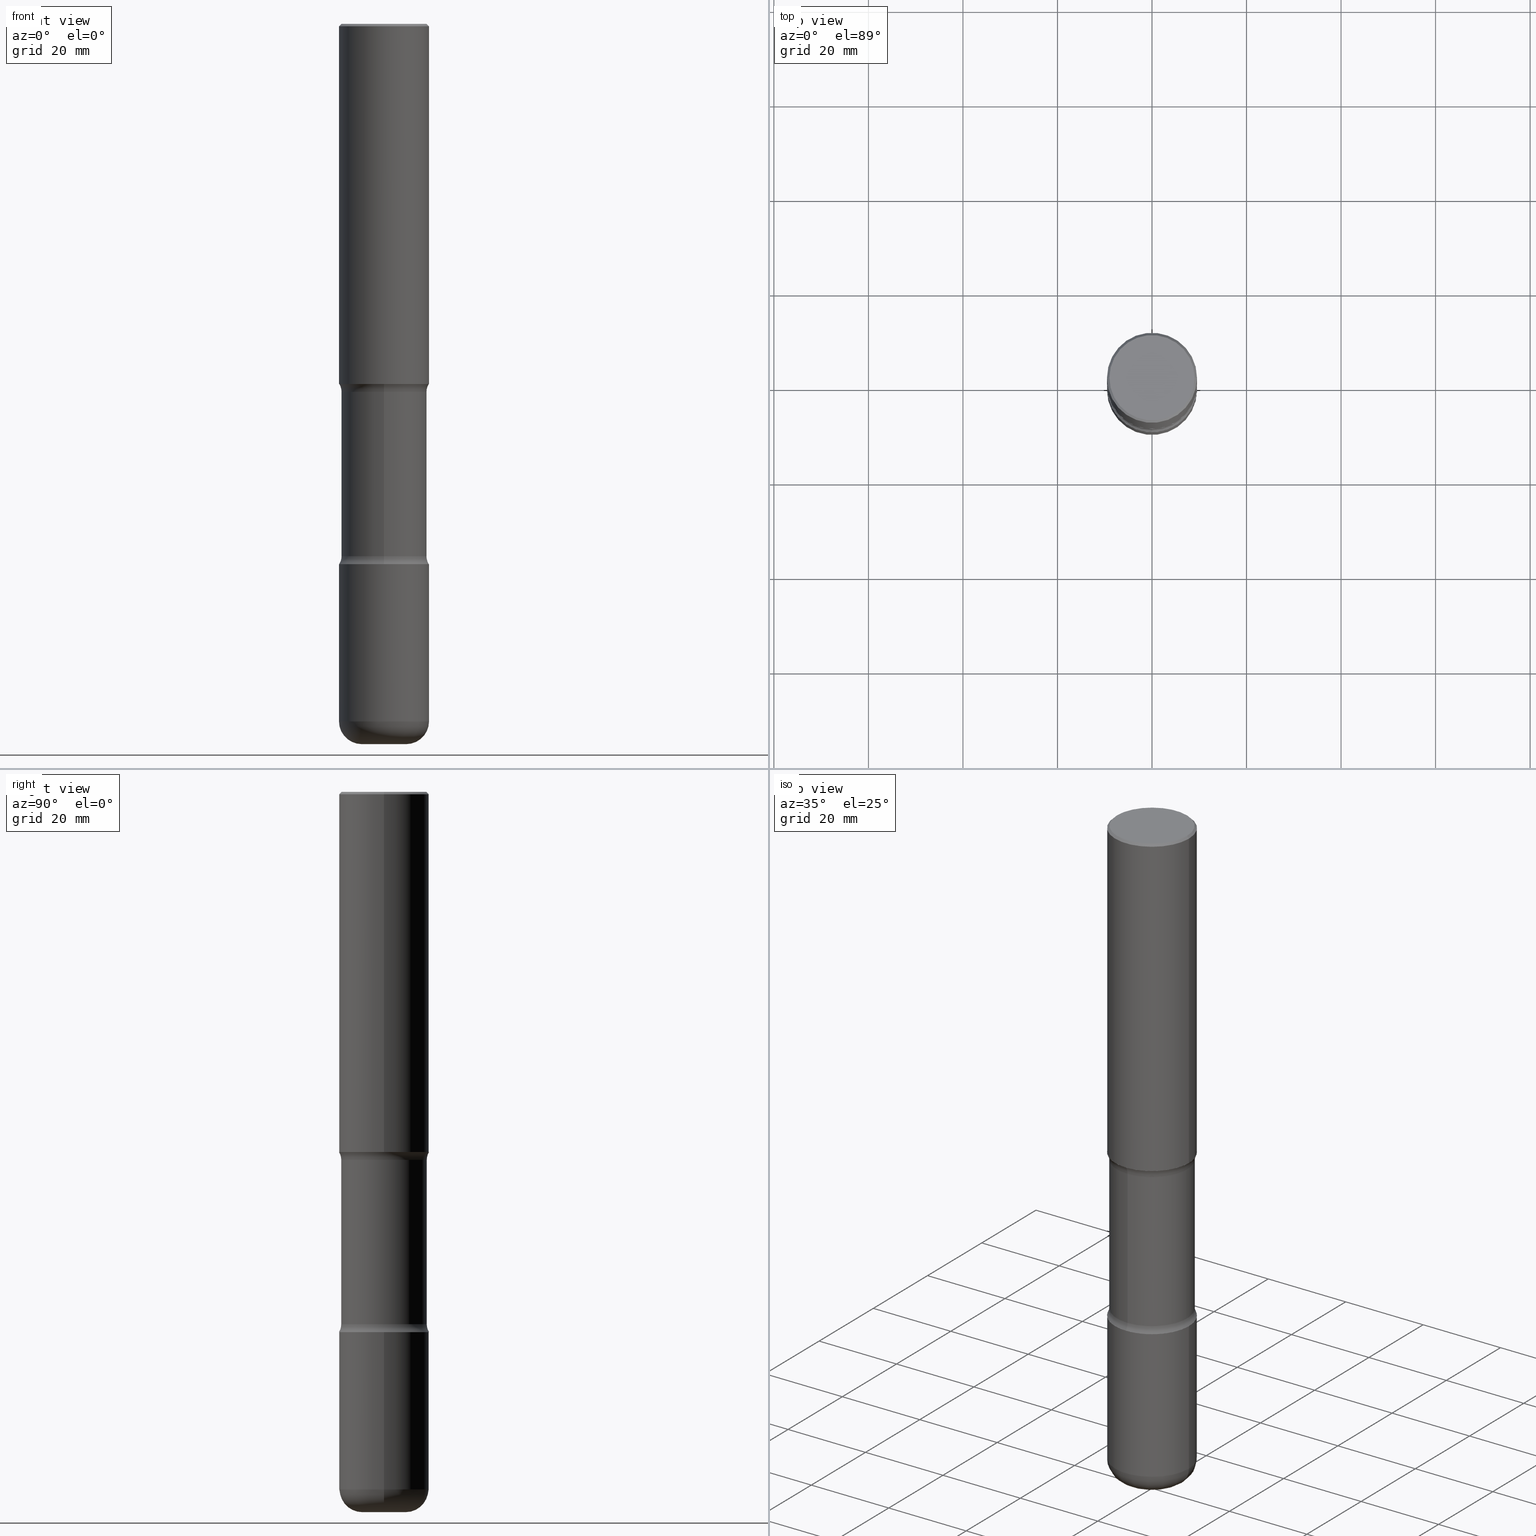
[diagram: canonical four-view strip — front | top / right | iso, engineering-drawing reading convention]
A machine part, canonical four-view strip (front | top / right | iso — engineering-drawing reading convention). The complete STEP part file that produces these views, byte-faithful:
ISO-10303-21;
HEADER;
FILE_DESCRIPTION (( 'STEP AP203' ),
    '1' );
FILE_NAME ('37946.STEP',
    '2024-03-02T01:41:43',
    ( '' ),
    ( '' ),
    'SwSTEP 2.0',
    'SolidWorks 2023',
    '' );
FILE_SCHEMA (( 'CONFIG_CONTROL_DESIGN' ));
ENDSEC;

DATA;
#1 = VERTEX_POINT ( 'NONE', #104 ) ;
#2 = AXIS2_PLACEMENT_3D ( 'NONE', #121, #418, #281 ) ;
#3 = VERTEX_POINT ( 'NONE', #198 ) ;
#4 = FACE_OUTER_BOUND ( 'NONE', #90, .T. ) ;
#5 = ORIENTED_EDGE ( 'NONE', *, *, #288, .F. ) ;
#6 = VERTEX_POINT ( 'NONE', #533 ) ;
#7 = MANIFOLD_SOLID_BREP ( 'Body-Move/Copy2[1]', #356 ) ;
#8 = AXIS2_PLACEMENT_3D ( 'NONE', #25, #413, #376 ) ;
#9 = CIRCLE ( 'NONE', #31, 0.3750000000000003886 ) ;
#10 = ADVANCED_FACE ( 'NONE', ( #367 ), #153, .F. ) ;
#11 = ORIENTED_EDGE ( 'NONE', *, *, #230, .T. ) ;
#12 = ORIENTED_EDGE ( 'NONE', *, *, #73, .F. ) ;
#13 = CARTESIAN_POINT ( 'NONE',  ( -3.301614661427441806E-15, -0.4812500000000156097, -4.434152164044668609 ) ) ;
#14 = CARTESIAN_POINT ( 'NONE',  ( 2.487680453925806274E-15, 0.3562499999999891309, -3.065847835955330503 ) ) ;
#15 = CIRCLE ( 'NONE', #345, 0.3750000000000003886 ) ;
#16 = CONICAL_SURFACE ( 'NONE', #346, 0.3750000000000001110, 0.7853981633974479459 ) ;
#17 = DIRECTION ( 'NONE',  ( 2.508247471065963170E-29, -3.401578717594097873E-15, -1.000000000000000000 ) ) ;
#18 = CARTESIAN_POINT ( 'NONE',  ( 0.3750000000000003886, -1.833027702892650691E-14, -4.499999999999999112 ) ) ;
#19 = LOCAL_TIME ( 20, 41, 43.00000000000000000, #429 ) ;
#20 = PERSON_AND_ORGANIZATION ( #221, #40 ) ;
#21 = CARTESIAN_POINT ( 'NONE',  ( 0.000000000000000000, 0.000000000000000000, 0.000000000000000000 ) ) ;
#22 = DIRECTION ( 'NONE',  ( 1.000000000000000000, -6.982962677686263555E-15, 0.000000000000000000 ) ) ;
#23 = APPROVAL ( #26, 'UNSPECIFIED' ) ;
#24 = FACE_OUTER_BOUND ( 'NONE', #192, .T. ) ;
#25 = CARTESIAN_POINT ( 'NONE',  ( 1.100460962783311244E-28, -1.571166602479415374E-14, -4.499999999999999112 ) ) ;
#26 = APPROVAL_STATUS ( 'not_yet_approved' ) ;
#27 = CARTESIAN_POINT ( 'NONE',  ( 1.420817376393564022E-28, -2.028550657867867295E-14, -5.809999999999998721 ) ) ;
#28 = CARTESIAN_POINT ( 'NONE',  ( 3.360550788636623928E-15, 0.4812499999999845790, -4.434152164044672162 ) ) ;
#29 = CALENDAR_DATE ( 2024, 1, 3 ) ;
#30 = EDGE_CURVE ( 'NONE', #344, #558, #15, .T. ) ;
#31 = AXIS2_PLACEMENT_3D ( 'NONE', #62, #423, #441 ) ;
#32 = CARTESIAN_POINT ( 'NONE',  ( 7.242238421234168109E-29, -1.060929794840300496E-14, -2.999999999999999112 ) ) ;
#33 = ORIENTED_EDGE ( 'NONE', *, *, #264, .T. ) ;
#34 = DIRECTION ( 'NONE',  ( 6.982962677686266711E-15, 1.000000000000000000, -2.913971193241876822E-15 ) ) ;
#35 = CALENDAR_DATE ( 2024, 1, 3 ) ;
#36 = EDGE_LOOP ( 'NONE', ( #427, #392, #254, #527 ) ) ;
#37 = CARTESIAN_POINT ( 'NONE',  ( 1.420817376393564022E-28, -2.028550657867867295E-14, -5.809999999999998721 ) ) ;
#38 = EDGE_LOOP ( 'NONE', ( #271, #432, #103, #259 ) ) ;
#39 = CIRCLE ( 'NONE', #91, 0.1249999999999999584 ) ;
#40 = ORGANIZATION ( 'UNSPECIFIED', 'UNSPECIFIED', '' ) ;
#41 = ADVANCED_FACE ( 'NONE', ( #405 ), #99, .F. ) ;
#42 = EDGE_CURVE ( 'NONE', #225, #188, #156, .T. ) ;
#43 = DIRECTION ( 'NONE',  ( 2.438088387897960049E-29, -3.491481338843145188E-15, -1.000000000000000000 ) ) ;
#44 = CARTESIAN_POINT ( 'NONE',  ( 7.402053284434616373E-29, -1.084094290665388719E-14, -3.065847835955329614 ) ) ;
#45 = ORIENTED_EDGE ( 'NONE', *, *, #315, .F. ) ;
#46 = EDGE_CURVE ( 'NONE', #558, #384, #544, .T. ) ;
#47 = CARTESIAN_POINT ( 'NONE',  ( -3.301614661427474544E-15, -0.4812500000000108358, -3.065847835955327838 ) ) ;
#48 = EDGE_LOOP ( 'NONE', ( #45, #358, #364, #186 ) ) ;
#49 = DIRECTION ( 'NONE',  ( -2.445468806185136597E-29, 3.491481338843145583E-15, 1.000000000000000000 ) ) ;
#50 = DIRECTION ( 'NONE',  ( 1.000000000000000000, -6.982962677686265922E-15, 0.000000000000000000 ) ) ;
#51 = EDGE_CURVE ( 'NONE', #216, #176, #459, .T. ) ;
#52 = PERSON_AND_ORGANIZATION ( #221, #40 ) ;
#53 = CIRCLE ( 'NONE', #120, 0.3750000000000004996 ) ;
#54 = UNCERTAINTY_MEASURE_WITH_UNIT (LENGTH_MEASURE( 1.000000000000000082E-05 ), #559, 'distance_accuracy_value', 'NONE');
#55 = ORIENTED_EDGE ( 'NONE', *, *, #46, .F. ) ;
#56 = EDGE_LOOP ( 'NONE', ( #107, #514, #94, #266 ) ) ;
#57 = CARTESIAN_POINT ( 'NONE',  ( 0.3750000000000003886, -1.309305502066178637E-14, -2.999999999999999112 ) ) ;
#58 = EDGE_LOOP ( 'NONE', ( #61, #349, #149, #430 ) ) ;
#59 = AXIS2_PLACEMENT_3D ( 'NONE', #207, #502, #292 ) ;
#60 = CIRCLE ( 'NONE', #241, 0.3550000000000000377 ) ;
#61 = ORIENTED_EDGE ( 'NONE', *, *, #472, .F. ) ;
#62 = CARTESIAN_POINT ( 'NONE',  ( 1.100460962783311244E-28, -1.571166602479415374E-14, -4.499999999999999112 ) ) ;
#63 = FACE_OUTER_BOUND ( 'NONE', #473, .T. ) ;
#64 = DIRECTION ( 'NONE',  ( -6.982962677686266711E-15, -1.000000000000000000, 3.491481338843145583E-15 ) ) ;
#65 = DIRECTION ( 'NONE',  ( 6.982962677686265133E-15, 1.000000000000000000, -3.067338098149347905E-15 ) ) ;
#66 = COORDINATED_UNIVERSAL_TIME_OFFSET ( 5, 0, .BEHIND. ) ;
#67 = DIMENSIONAL_EXPONENTS ( 1.000000000000000000, 0.000000000000000000, 0.000000000000000000, 0.000000000000000000, 0.000000000000000000, 0.000000000000000000, 0.000000000000000000 ) ;
#68 = VECTOR ( 'NONE', #343, 39.37007874015748143 ) ;
#69 = DIRECTION ( 'NONE',  ( -2.445468806185136597E-29, 3.491481338843145583E-15, 1.000000000000000000 ) ) ;
#70 = AXIS2_PLACEMENT_3D ( 'NONE', #161, #419, #330 ) ;
#71 = CARTESIAN_POINT ( 'NONE',  ( 1.084358079904955852E-28, -1.548175953435291656E-14, -4.434152164044670386 ) ) ;
#72 = SECURITY_CLASSIFICATION_LEVEL ( 'unclassified' ) ;
#73 = EDGE_CURVE ( 'NONE', #361, #440, #331, .T. ) ;
#74 = EDGE_CURVE ( 'NONE', #322, #176, #245, .T. ) ;
#75 = CYLINDRICAL_SURFACE ( 'NONE', #380, 0.3750000000000004441 ) ;
#76 = CARTESIAN_POINT ( 'NONE',  ( 1.100460962783311244E-28, -1.571166602479415374E-14, -4.499999999999999112 ) ) ;
#77 = FACE_OUTER_BOUND ( 'NONE', #38, .T. ) ;
#78 = APPLICATION_PROTOCOL_DEFINITION ( 'international standard', 'config_control_design', 1994, #106 ) ;
#79 = ORIENTED_EDGE ( 'NONE', *, *, #234, .F. ) ;
#80 = CIRCLE ( 'NONE', #434, 0.1899999999999999467 ) ;
#81 = CIRCLE ( 'NONE', #373, 0.3750000000000001110 ) ;
#82 = CARTESIAN_POINT ( 'NONE',  ( 1.467281283711081510E-28, -2.094888803305886640E-14, -5.999999999999998224 ) ) ;
#83 = CARTESIAN_POINT ( 'NONE',  ( 7.407401089244291879E-29, -1.083328454578828421E-14, -3.065847835955329614 ) ) ;
#84 = VERTEX_POINT ( 'NONE', #236 ) ;
#85 = DIRECTION ( 'NONE',  ( 1.000000000000000000, -6.982962677686263555E-15, 4.883557194083111780E-29 ) ) ;
#86 = ORIENTED_EDGE ( 'NONE', *, *, #327, .F. ) ;
#87 = ADVANCED_FACE ( 'NONE', ( #286 ), #340, .T. ) ;
#88 = DIRECTION ( 'NONE',  ( 2.508247471065963170E-29, -3.401578717594097873E-15, -1.000000000000000000 ) ) ;
#89 = CC_DESIGN_DATE_AND_TIME_ASSIGNMENT ( #509, #128, ( #539 ) ) ;
#90 = EDGE_LOOP ( 'NONE', ( #519, #492 ) ) ;
#91 = AXIS2_PLACEMENT_3D ( 'NONE', #47, #223, #305 ) ;
#92 = TOROIDAL_SURFACE ( 'NONE', #211, 0.4812499999999999556, 0.1249999999999999584 ) ;
#93 = CARTESIAN_POINT ( 'NONE',  ( 2.478951750578624998E-15, 0.3550000000000000377, -1.237341619044266624E-15 ) ) ;
#94 = ORIENTED_EDGE ( 'NONE', *, *, #297, .F. ) ;
#95 = EDGE_CURVE ( 'NONE', #150, #225, #80, .T. ) ;
#96 = DIRECTION ( 'NONE',  ( 6.982962677686265922E-15, 1.000000000000000000, -3.401578717594097873E-15 ) ) ;
#97 = APPLICATION_PROTOCOL_DEFINITION ( 'international standard', 'config_control_design', 1994, #119 ) ;
#98 = EDGE_LOOP ( 'NONE', ( #55, #228, #33, #86 ) ) ;
#99 = TOROIDAL_SURFACE ( 'NONE', #110, 0.4812500000000000666, 0.1249999999999998612 ) ;
#100 = AXIS2_PLACEMENT_3D ( 'NONE', #335, #537, #168 ) ;
#101 = CC_DESIGN_SECURITY_CLASSIFICATION ( #539, ( #134 ) ) ;
#102 = EDGE_CURVE ( 'NONE', #1, #147, #374, .T. ) ;
#103 = ORIENTED_EDGE ( 'NONE', *, *, #404, .T. ) ;
#104 = CARTESIAN_POINT ( 'NONE',  ( 0.3550000000000000377, -2.538996582575041048E-15, 4.268512490117958041E-18 ) ) ;
#105 = PRODUCT_RELATED_PRODUCT_CATEGORY ( 'detail', '', ( #350 ) ) ;
#106 = APPLICATION_CONTEXT ( 'configuration controlled 3d designs of mechanical parts and assemblies' ) ;
#107 = ORIENTED_EDGE ( 'NONE', *, *, #215, .T. ) ;
#108 = CC_DESIGN_PERSON_AND_ORGANIZATION_ASSIGNMENT ( #504, #284, ( #134 ) ) ;
#109 = AXIS2_PLACEMENT_3D ( 'NONE', #450, #447, #442 ) ;
#110 = AXIS2_PLACEMENT_3D ( 'NONE', #485, #534, #96 ) ;
#111 = AXIS2_PLACEMENT_3D ( 'NONE', #76, #249, #456 ) ;
#112 = FACE_OUTER_BOUND ( 'NONE', #98, .T. ) ;
#113 = EDGE_CURVE ( 'NONE', #225, #444, #451, .T. ) ;
#114 = DIRECTION ( 'NONE',  ( -1.000000000000000000, 6.982962677686265922E-15, 0.000000000000000000 ) ) ;
#115 = DIRECTION ( 'NONE',  ( -2.445468806185136597E-29, 3.491481338843145583E-15, 1.000000000000000000 ) ) ;
#116 = PERSON_AND_ORGANIZATION ( #221, #40 ) ;
#117 = DIRECTION ( 'NONE',  ( 2.508247471065963170E-29, -3.401578717594097873E-15, -1.000000000000000000 ) ) ;
#118 = CALENDAR_DATE ( 2024, 1, 3 ) ;
#119 = APPLICATION_CONTEXT ( 'configuration controlled 3d designs of mechanical parts and assemblies' ) ;
#120 = AXIS2_PLACEMENT_3D ( 'NONE', #389, #88, #471 ) ;
#121 = CARTESIAN_POINT ( 'NONE',  ( 0.000000000000000000, 0.000000000000000000, 0.000000000000000000 ) ) ;
#122 =( GEOMETRIC_REPRESENTATION_CONTEXT ( 3 ) GLOBAL_UNCERTAINTY_ASSIGNED_CONTEXT ( ( #54 ) ) GLOBAL_UNIT_ASSIGNED_CONTEXT ( ( #559, #143, #247 ) ) REPRESENTATION_CONTEXT ( 'NONE', 'WORKASPACE' ) );
#123 = PERSON_AND_ORGANIZATION_ROLE ( 'design_owner' ) ;
#124 = ADVANCED_FACE ( 'NONE', ( #497 ), #495, .F. ) ;
#125 = DIRECTION ( 'NONE',  ( -1.000000000000000000, 7.105427357600999492E-15, 0.000000000000000000 ) ) ;
#126 = CARTESIAN_POINT ( 'NONE',  ( 4.890937612370289799E-31, -6.982962677686315028E-17, -0.02000000000000006981 ) ) ;
#127 = CARTESIAN_POINT ( 'NONE',  ( 7.336406418555407548E-29, -1.047444401652943320E-14, -2.999999999999999112 ) ) ;
#128 = DATE_TIME_ROLE ( 'classification_date' ) ;
#129 = DIRECTION ( 'NONE',  ( 6.982962677686265133E-15, 1.000000000000000000, -3.067338098149347905E-15 ) ) ;
#130 = ADVANCED_FACE ( 'NONE', ( #112 ), #540, .T. ) ;
#131 = DIRECTION ( 'NONE',  ( 6.982962677686265133E-15, 1.000000000000000000, -3.067338098149347905E-15 ) ) ;
#132 = AXIS2_PLACEMENT_3D ( 'NONE', #256, #351, #431 ) ;
#133 = ORIENTED_EDGE ( 'NONE', *, *, #74, .F. ) ;
#134 = PRODUCT_DEFINITION_FORMATION_WITH_SPECIFIED_SOURCE ( 'ANY', '', #350, .NOT_KNOWN. ) ;
#135 = DIRECTION ( 'NONE',  ( -6.982962677686265133E-15, -1.000000000000000000, 0.000000000000000000 ) ) ;
#136 = EDGE_LOOP ( 'NONE', ( #224, #262 ) ) ;
#137 = PRODUCT_DEFINITION ( 'UNKNOWN', '', #134, #400 ) ;
#138 = CARTESIAN_POINT ( 'NONE',  ( 1.476698083443205790E-28, -2.081403410118529621E-14, -5.999999999999999112 ) ) ;
#139 = ORIENTED_EDGE ( 'NONE', *, *, #264, .F. ) ;
#140 = EDGE_CURVE ( 'NONE', #6, #440, #489, .T. ) ;
#141 = CARTESIAN_POINT ( 'NONE',  ( 0.3750000000000002220, -2.618611004132351594E-15, 1.828566290923477043E-29 ) ) ;
#142 = ORIENTED_EDGE ( 'NONE', *, *, #412, .F. ) ;
#143 =( NAMED_UNIT ( * ) PLANE_ANGLE_UNIT ( ) SI_UNIT ( $, .RADIAN. ) );
#144 = CIRCLE ( 'NONE', #525, 0.3750000000000003886 ) ;
#145 = AXIS2_PLACEMENT_3D ( 'NONE', #541, #283, #414 ) ;
#146 = EDGE_CURVE ( 'NONE', #176, #440, #515, .T. ) ;
#147 = VERTEX_POINT ( 'NONE', #282 ) ;
#148 = PRODUCT_DEFINITION_SHAPE ( 'NONE', 'NONE',  #137 ) ;
#149 = ORIENTED_EDGE ( 'NONE', *, *, #412, .T. ) ;
#150 = VERTEX_POINT ( 'NONE', #463 ) ;
#151 = VECTOR ( 'NONE', #420, 39.37007874015748143 ) ;
#152 = AXIS2_PLACEMENT_3D ( 'NONE', #368, #334, #280 ) ;
#153 = PLANE ( 'NONE',  #109 ) ;
#154 = EDGE_CURVE ( 'NONE', #363, #188, #179, .T. ) ;
#155 = ADVANCED_FACE ( 'NONE', ( #237 ), #481, .T. ) ;
#156 = LINE ( 'NONE', #157, #387 ) ;
#157 = CARTESIAN_POINT ( 'NONE',  ( -0.3750000000000004441, 2.664535259100378852E-15, -1.844600658845591840E-29 ) ) ;
#158 = AXIS2_PLACEMENT_3D ( 'NONE', #439, #425, #265 ) ;
#159 = AXIS2_PLACEMENT_3D ( 'NONE', #416, #542, #324 ) ;
#160 = CARTESIAN_POINT ( 'NONE',  ( -0.1850000000000005529, -1.897100251752248407E-14, -5.809999999999998721 ) ) ;
#161 = CARTESIAN_POINT ( 'NONE',  ( 1.476698083443205790E-28, -2.081403410118529621E-14, -5.999999999999999112 ) ) ;
#162 = CARTESIAN_POINT ( 'NONE',  ( -0.3750000000000002220, 2.664535259100377275E-15, -1.844600658845590719E-29 ) ) ;
#163 = PERSON_AND_ORGANIZATION_ROLE ( 'creator' ) ;
#164 = CARTESIAN_POINT ( 'NONE',  ( -0.3750000000000003886, -1.533405104263603449E-14, -4.499999999999999112 ) ) ;
#165 = LINE ( 'NONE', #201, #460 ) ;
#166 = APPROVAL_DATE_TIME ( #253, #23 ) ;
#167 = CIRCLE ( 'NONE', #232, 0.3750000000000001110 ) ;
#168 = DIRECTION ( 'NONE',  ( 1.000000000000000000, -6.982962677686266711E-15, 4.876176775795935793E-29 ) ) ;
#169 = APPROVAL_PERSON_ORGANIZATION ( #116, #310, #250 ) ;
#170 = APPROVAL_DATE_TIME ( #457, #310 ) ;
#171 = CARTESIAN_POINT ( 'NONE',  ( 7.407401089244291879E-29, -1.083328454578828421E-14, -3.065847835955329614 ) ) ;
#172 = DIRECTION ( 'NONE',  ( 1.000000000000000000, -6.982962677686265922E-15, 0.000000000000000000 ) ) ;
#173 = ORIENTED_EDGE ( 'NONE', *, *, #146, .T. ) ;
#174 = CARTESIAN_POINT ( 'NONE',  ( 3.942056537445517590E-28, 1.449130215501796692E-14, -5.999999999999999112 ) ) ;
#175 = DIRECTION ( 'NONE',  ( 2.445468806185136597E-29, -3.491481338843145583E-15, -1.000000000000000000 ) ) ;
#176 = VERTEX_POINT ( 'NONE', #381 ) ;
#177 = CARTESIAN_POINT ( 'NONE',  ( -0.3750000000000004996, -1.762097131957829410E-14, -5.809999999999998721 ) ) ;
#178 = CLOSED_SHELL ( 'NONE', ( #87, #155, #276, #320, #446, #130 ) ) ;
#179 = CIRCLE ( 'NONE', #8, 0.3750000000000003886 ) ;
#180 = ORIENTED_EDGE ( 'NONE', *, *, #113, .T. ) ;
#181 = APPROVAL_PERSON_ORGANIZATION ( #205, #448, #518 ) ;
#182 = DIRECTION ( 'NONE',  ( 1.000000000000000000, -6.982962677686263555E-15, 0.000000000000000000 ) ) ;
#183 = ORIENTED_EDGE ( 'NONE', *, *, #30, .T. ) ;
#184 = CARTESIAN_POINT ( 'NONE',  ( 4.890937612370289799E-31, -6.982962677686315028E-17, -0.02000000000000006981 ) ) ;
#185 = ADVANCED_FACE ( 'NONE', ( #411 ), #75, .T. ) ;
#186 = ORIENTED_EDGE ( 'NONE', *, *, #193, .T. ) ;
#187 = ADVANCED_FACE ( 'NONE', ( #63 ), #548, .T. ) ;
#188 = VERTEX_POINT ( 'NONE', #164 ) ;
#189 = LENGTH_MEASURE_WITH_UNIT ( LENGTH_MEASURE( 0.02539999999999999897 ), #355 );
#190 = LOCAL_TIME ( 20, 41, 43.00000000000000000, #66 ) ;
#191 = ORIENTED_EDGE ( 'NONE', *, *, #453, .T. ) ;
#192 = EDGE_LOOP ( 'NONE', ( #191, #551 ) ) ;
#193 = EDGE_CURVE ( 'NONE', #3, #84, #53, .T. ) ;
#194 = EDGE_LOOP ( 'NONE', ( #133, #214, #437, #397 ) ) ;
#195 = VECTOR ( 'NONE', #252, 39.37007874015748143 ) ;
#196 = APPROVAL_PERSON_ORGANIZATION ( #467, #23, #498 ) ;
#197 = ORIENTED_EDGE ( 'NONE', *, *, #51, .F. ) ;
#198 = CARTESIAN_POINT ( 'NONE',  ( 2.618611004132426142E-15, 0.3749999999999898415, -3.000000000000000444 ) ) ;
#199 = EDGE_CURVE ( 'NONE', #322, #361, #396, .T. ) ;
#200 = DIRECTION ( 'NONE',  ( -1.000000000000000000, 6.982962677686265922E-15, -4.883557194083112901E-29 ) ) ;
#201 = CARTESIAN_POINT ( 'NONE',  ( -0.3750000000000001110, 2.548781377355487113E-15, -0.02000000000000006981 ) ) ;
#202 = MANIFOLD_SOLID_BREP ( 'Body-Move/Copy2[4]', #317 ) ;
#203 = AXIS2_PLACEMENT_3D ( 'NONE', #383, #342, #135 ) ;
#204 = DIRECTION ( 'NONE',  ( 7.105427357601001859E-15, 1.000000000000000000, -3.491481338843145583E-15 ) ) ;
#205 = PERSON_AND_ORGANIZATION ( #221, #40 ) ;
#206 = DIRECTION ( 'NONE',  ( 1.000000000000000000, -6.982962677686265922E-15, 4.876176775795935793E-29 ) ) ;
#207 = CARTESIAN_POINT ( 'NONE',  ( 1.420817376393564022E-28, -2.028550657867867295E-14, -5.809999999999998721 ) ) ;
#208 = CC_DESIGN_PERSON_AND_ORGANIZATION_ASSIGNMENT ( #52, #123, ( #350 ) ) ;
#209 = DIRECTION ( 'NONE',  ( -6.982962677686268288E-15, -1.000000000000000000, 0.000000000000000000 ) ) ;
#210 = CARTESIAN_POINT ( 'NONE',  ( 0.1850000000000005529, -2.157735467405063292E-14, -5.809999999999998721 ) ) ;
#211 = AXIS2_PLACEMENT_3D ( 'NONE', #44, #557, #401 ) ;
#212 = DIRECTION ( 'NONE',  ( 1.000000000000000000, -6.982962677686266711E-15, 4.876231632511987623E-29 ) ) ;
#213 = CARTESIAN_POINT ( 'NONE',  ( 1.100460962783311244E-28, -1.571166602479415374E-14, -4.499999999999999112 ) ) ;
#214 = ORIENTED_EDGE ( 'NONE', *, *, #199, .T. ) ;
#215 = EDGE_CURVE ( 'NONE', #490, #150, #240, .T. ) ;
#216 = VERTEX_POINT ( 'NONE', #483 ) ;
#217 = LINE ( 'NONE', #141, #195 ) ;
#218 = ORIENTED_EDGE ( 'NONE', *, *, #193, .F. ) ;
#219 = CIRCLE ( 'NONE', #279, 0.3550000000000000377 ) ;
#220 = DIRECTION ( 'NONE',  ( -1.000000000000000000, 6.982962677686265922E-15, -4.876176775795935793E-29 ) ) ;
#221 = PERSON ( 'UNSPECIFIED', 'UNSPECIFIED', 'UNSPECIFIED', ('UNSPECIFIED'), ('UNSPECIFIED'), ('UNSPECIFIED') ) ;
#222 = ORIENTED_EDGE ( 'NONE', *, *, #487, .T. ) ;
#223 = DIRECTION ( 'NONE',  ( 1.000000000000000000, -6.860497997771530774E-15, 4.841899869197618814E-29 ) ) ;
#224 = ORIENTED_EDGE ( 'NONE', *, *, #30, .F. ) ;
#225 = VERTEX_POINT ( 'NONE', #177 ) ;
#226 = AXIS2_PLACEMENT_3D ( 'NONE', #32, #428, #34 ) ;
#227 = DIRECTION ( 'NONE',  ( 2.438088387897960049E-29, -3.491481338843145188E-15, -1.000000000000000000 ) ) ;
#228 = ORIENTED_EDGE ( 'NONE', *, *, #336, .T. ) ;
#229 = VERTEX_POINT ( 'NONE', #474 ) ;
#230 = EDGE_CURVE ( 'NONE', #440, #176, #553, .T. ) ;
#231 = DIRECTION ( 'NONE',  ( -2.445468806185136597E-29, 3.491481338843145583E-15, 1.000000000000000000 ) ) ;
#232 = AXIS2_PLACEMENT_3D ( 'NONE', #184, #393, #172 ) ;
#233 = CC_DESIGN_APPROVAL ( #448, ( #539 ) ) ;
#234 = EDGE_CURVE ( 'NONE', #84, #3, #468, .T. ) ;
#235 = ORIENTED_EDGE ( 'NONE', *, *, #199, .F. ) ;
#236 = CARTESIAN_POINT ( 'NONE',  ( -2.572686749164255311E-15, -0.3750000000000111577, -2.999999999999998224 ) ) ;
#237 = FACE_OUTER_BOUND ( 'NONE', #58, .T. ) ;
#238 = PERSON_AND_ORGANIZATION_ROLE ( 'design_supplier' ) ;
#239 = FACE_OUTER_BOUND ( 'NONE', #136, .T. ) ;
#240 = CIRCLE ( 'NONE', #158, 0.1850000000000005806 ) ;
#241 = AXIS2_PLACEMENT_3D ( 'NONE', #462, #49, #212 ) ;
#242 = CARTESIAN_POINT ( 'NONE',  ( 1.083944695982298980E-28, -1.548767942740887449E-14, -4.434152164044669497 ) ) ;
#243 = DIRECTION ( 'NONE',  ( 1.000000000000000000, -6.982962677686266711E-15, 4.876231632511987623E-29 ) ) ;
#244 = EDGE_CURVE ( 'NONE', #188, #363, #536, .T. ) ;
#245 = LINE ( 'NONE', #295, #151 ) ;
#246 = PERSON_AND_ORGANIZATION_ROLE ( 'classification_officer' ) ;
#247 =( NAMED_UNIT ( * ) SI_UNIT ( $, .STERADIAN. ) SOLID_ANGLE_UNIT ( ) );
#248 = DIRECTION ( 'NONE',  ( 6.982962677686265922E-15, 1.000000000000000000, -3.401578717594097873E-15 ) ) ;
#249 = DIRECTION ( 'NONE',  ( 2.438088387897960049E-29, -3.491481338843145188E-15, -1.000000000000000000 ) ) ;
#250 = APPROVAL_ROLE ( '' ) ;
#251 = AXIS2_PLACEMENT_3D ( 'NONE', #28, #200, #209 ) ;
#252 = DIRECTION ( 'NONE',  ( -2.445468806185136877E-29, 3.491481338843145188E-15, 1.000000000000000000 ) ) ;
#253 = DATE_AND_TIME ( #118, #190 ) ;
#254 = ORIENTED_EDGE ( 'NONE', *, *, #360, .T. ) ;
#255 = CARTESIAN_POINT ( 'NONE',  ( -0.3750000000000003886, -2.607601562552767029E-15, -2.999999999999999112 ) ) ;
#256 = CARTESIAN_POINT ( 'NONE',  ( 1.083944695982298980E-28, -1.548767942740887449E-14, -4.434152164044669497 ) ) ;
#257 = ORIENTED_EDGE ( 'NONE', *, *, #505, .T. ) ;
#258 = DIRECTION ( 'NONE',  ( -1.000000000000000000, 6.982962677686265922E-15, 0.000000000000000000 ) ) ;
#259 = ORIENTED_EDGE ( 'NONE', *, *, #327, .T. ) ;
#260 = CYLINDRICAL_SURFACE ( 'NONE', #338, 0.3562500000000000111 ) ;
#261 = CIRCLE ( 'NONE', #289, 0.3750000000000004996 ) ;
#262 = ORIENTED_EDGE ( 'NONE', *, *, #336, .F. ) ;
#263 = LOCAL_TIME ( 20, 41, 43.00000000000000000, #299 ) ;
#264 = EDGE_CURVE ( 'NONE', #344, #147, #217, .T. ) ;
#265 = DIRECTION ( 'NONE',  ( 1.000000000000000000, -6.982962677686264344E-15, 0.000000000000000000 ) ) ;
#266 = ORIENTED_EDGE ( 'NONE', *, *, #360, .F. ) ;
#267 = EDGE_CURVE ( 'NONE', #361, #3, #319, .T. ) ;
#268 = DIRECTION ( 'NONE',  ( -2.445468806185136877E-29, 3.491481338843145188E-15, 1.000000000000000000 ) ) ;
#269 = MECHANICAL_CONTEXT ( 'NONE', #119, 'mechanical' ) ;
#270 = CARTESIAN_POINT ( 'NONE',  ( 0.3750000000000004996, -2.290411758281102297E-14, -5.809999999999998721 ) ) ;
#271 = ORIENTED_EDGE ( 'NONE', *, *, #102, .F. ) ;
#272 = AXIS2_PLACEMENT_3D ( 'NONE', #522, #549, #85 ) ;
#273 = ORIENTED_EDGE ( 'NONE', *, *, #140, .T. ) ;
#274 = ADVANCED_FACE ( 'NONE', ( #303 ), #443, .T. ) ;
#275 = ORIENTED_EDGE ( 'NONE', *, *, #51, .T. ) ;
#276 = ADVANCED_FACE ( 'NONE', ( #77 ), #16, .T. ) ;
#277 = ORIENTED_EDGE ( 'NONE', *, *, #154, .T. ) ;
#278 = TOROIDAL_SURFACE ( 'NONE', #145, 0.4812499999999999556, 0.1249999999999999584 ) ;
#279 = AXIS2_PLACEMENT_3D ( 'NONE', #449, #408, #243 ) ;
#280 = DIRECTION ( 'NONE',  ( 6.982962677686265922E-15, 1.000000000000000000, -2.913971193241877611E-15 ) ) ;
#281 = DIRECTION ( 'NONE',  ( 1.000000000000000000, -6.982962677686266711E-15, 4.876176775795935793E-29 ) ) ;
#282 = CARTESIAN_POINT ( 'NONE',  ( 0.3750000000000001110, -2.642516375941188423E-15, -0.02000000000000006981 ) ) ;
#283 = DIRECTION ( 'NONE',  ( 2.508247471065963170E-29, -3.401578717594097873E-15, -1.000000000000000000 ) ) ;
#284 = PERSON_AND_ORGANIZATION_ROLE ( 'creator' ) ;
#285 = PLANE ( 'NONE',  #159 ) ;
#286 = FACE_OUTER_BOUND ( 'NONE', #311, .T. ) ;
#287 = ADVANCED_BREP_SHAPE_REPRESENTATION ( '37946', ( #7, #410, #202, #470 ), #122 ) ;
#288 = EDGE_CURVE ( 'NONE', #444, #363, #391, .T. ) ;
#289 = AXIS2_PLACEMENT_3D ( 'NONE', #37, #554, #182 ) ;
#290 = CIRCLE ( 'NONE', #532, 0.3562500000000000111 ) ;
#291 = CC_DESIGN_PERSON_AND_ORGANIZATION_ASSIGNMENT ( #20, #246, ( #539 ) ) ;
#292 = DIRECTION ( 'NONE',  ( 1.000000000000000000, -6.982962677686263555E-15, 0.000000000000000000 ) ) ;
#293 = PERSON_AND_ORGANIZATION ( #221, #40 ) ;
#294 = DIRECTION ( 'NONE',  ( 1.000000000000000000, -6.982962677686263555E-15, 4.883557194083111780E-29 ) ) ;
#295 = CARTESIAN_POINT ( 'NONE',  ( -2.444052411705960129E-15, -0.3562500000000208278, -5.999999999999998224 ) ) ;
#296 = FACE_OUTER_BOUND ( 'NONE', #521, .T. ) ;
#297 = EDGE_CURVE ( 'NONE', #444, #225, #261, .T. ) ;
#298 = DIRECTION ( 'NONE',  ( 2.508247471065963170E-29, -3.401578717594097873E-15, -1.000000000000000000 ) ) ;
#299 = COORDINATED_UNIVERSAL_TIME_OFFSET ( 5, 0, .BEHIND. ) ;
#300 = FACE_OUTER_BOUND ( 'NONE', #36, .T. ) ;
#301 = AXIS2_PLACEMENT_3D ( 'NONE', #83, #298, #131 ) ;
#302 = CARTESIAN_POINT ( 'NONE',  ( 0.3750000000000004441, -2.618611004132352777E-15, 1.828566290923478164E-29 ) ) ;
#303 = FACE_OUTER_BOUND ( 'NONE', #56, .T. ) ;
#304 = ORIENTED_EDGE ( 'NONE', *, *, #297, .T. ) ;
#305 = DIRECTION ( 'NONE',  ( 6.860497997771532351E-15, 1.000000000000000000, 0.000000000000000000 ) ) ;
#306 = APPROVAL_DATE_TIME ( #550, #448 ) ;
#307 = ORIENTED_EDGE ( 'NONE', *, *, #480, .F. ) ;
#308 = DIRECTION ( 'NONE',  ( 6.982962677686265133E-15, 1.000000000000000000, -3.067338098149347905E-15 ) ) ;
#309 = AXIS2_PLACEMENT_3D ( 'NONE', #21, #325, #206 ) ;
#310 = APPROVAL ( #501, 'UNSPECIFIED' ) ;
#311 = EDGE_LOOP ( 'NONE', ( #183, #403, #142, #139 ) ) ;
#312 = ADVANCED_FACE ( 'NONE', ( #520 ), #260, .T. ) ;
#313 = ORIENTED_EDGE ( 'NONE', *, *, #234, .T. ) ;
#314 = CARTESIAN_POINT ( 'NONE',  ( 0.1850000000000005806, -2.224073612843082952E-14, -5.999999999999998224 ) ) ;
#315 = EDGE_CURVE ( 'NONE', #322, #84, #39, .T. ) ;
#316 = ORIENTED_EDGE ( 'NONE', *, *, #472, .T. ) ;
#317 = CLOSED_SHELL ( 'NONE', ( #312, #41, #438, #352, #10, #479, #124, #407 ) ) ;
#318 = ORIENTED_EDGE ( 'NONE', *, *, #288, .T. ) ;
#319 = CIRCLE ( 'NONE', #203, 0.1249999999999999584 ) ;
#320 = ADVANCED_FACE ( 'NONE', ( #477 ), #436, .F. ) ;
#321 = EDGE_LOOP ( 'NONE', ( #307, #275, #173, #523 ) ) ;
#322 = VERTEX_POINT ( 'NONE', #556 ) ;
#323 = DIRECTION ( 'NONE',  ( 1.000000000000000000, -6.982962677686265922E-15, 0.000000000000000000 ) ) ;
#324 = DIRECTION ( 'NONE',  ( 1.000000000000000000, -6.982962677686265922E-15, 4.876176775795935793E-29 ) ) ;
#325 = DIRECTION ( 'NONE',  ( -2.445468806185136597E-29, 3.491481338843145583E-15, 1.000000000000000000 ) ) ;
#326 = AXIS2_PLACEMENT_3D ( 'NONE', #499, #378, #114 ) ;
#327 = EDGE_CURVE ( 'NONE', #384, #147, #167, .T. ) ;
#328 = TOROIDAL_SURFACE ( 'NONE', #398, 0.1850000000000005529, 0.1899999999999999190 ) ;
#329 = DIRECTION ( 'NONE',  ( 0.7071067811865472397, -7.319954787623254468E-15, -0.7071067811865477948 ) ) ;
#330 = DIRECTION ( 'NONE',  ( 6.982962677686265133E-15, 1.000000000000000000, -3.067338098149347905E-15 ) ) ;
#331 = LINE ( 'NONE', #455, #395 ) ;
#332 = CARTESIAN_POINT ( 'NONE',  ( -0.3750000000000001110, 2.548781377355487113E-15, -0.02000000000000006981 ) ) ;
#333 = APPROVAL_STATUS ( 'not_yet_approved' ) ;
#334 = DIRECTION ( 'NONE',  ( 2.508247471065963170E-29, -3.401578717594097873E-15, -1.000000000000000000 ) ) ;
#335 = CARTESIAN_POINT ( 'NONE',  ( 0.000000000000000000, 0.000000000000000000, 0.000000000000000000 ) ) ;
#336 = EDGE_CURVE ( 'NONE', #558, #344, #144, .T. ) ;
#337 = DIRECTION ( 'NONE',  ( -6.982962677686265922E-15, -1.000000000000000000, 3.401578717594097873E-15 ) ) ;
#338 = AXIS2_PLACEMENT_3D ( 'NONE', #138, #513, #308 ) ;
#339 = AXIS2_PLACEMENT_3D ( 'NONE', #82, #469, #362 ) ;
#340 = CYLINDRICAL_SURFACE ( 'NONE', #100, 0.3750000000000002220 ) ;
#341 = CALENDAR_DATE ( 2024, 1, 3 ) ;
#342 = DIRECTION ( 'NONE',  ( -1.000000000000000000, 6.982962677686265922E-15, -4.883557194083112901E-29 ) ) ;
#343 = DIRECTION ( 'NONE',  ( -2.445468806185136877E-29, 3.491481338843145188E-15, 1.000000000000000000 ) ) ;
#344 = VERTEX_POINT ( 'NONE', #57 ) ;
#345 = AXIS2_PLACEMENT_3D ( 'NONE', #369, #231, #50 ) ;
#346 = AXIS2_PLACEMENT_3D ( 'NONE', #354, #175, #258 ) ;
#347 = CIRCLE ( 'NONE', #366, 0.1899999999999999467 ) ;
#348 = DIRECTION ( 'NONE',  ( -2.445468806185136597E-29, 3.491481338843145583E-15, 1.000000000000000000 ) ) ;
#349 = ORIENTED_EDGE ( 'NONE', *, *, #102, .T. ) ;
#350 = PRODUCT ( '37946', '37946', '', ( #269 ) ) ;
#351 = DIRECTION ( 'NONE',  ( 2.508247471065963170E-29, -3.401578717594097873E-15, -1.000000000000000000 ) ) ;
#352 = ADVANCED_FACE ( 'NONE', ( #531 ), #278, .F. ) ;
#353 = ORIENTED_EDGE ( 'NONE', *, *, #74, .T. ) ;
#354 = CARTESIAN_POINT ( 'NONE',  ( 4.890937612370289799E-31, -6.982962677686315028E-17, -0.02000000000000006981 ) ) ;
#355 =( LENGTH_UNIT ( ) NAMED_UNIT ( * ) SI_UNIT ( $, .METRE. ) );
#356 = CLOSED_SHELL ( 'NONE', ( #185, #274, #535, #507, #187, #433 ) ) ;
#357 = VECTOR ( 'NONE', #329, 39.37007874015748143 ) ;
#358 = ORIENTED_EDGE ( 'NONE', *, *, #505, .F. ) ;
#359 = CIRCLE ( 'NONE', #339, 0.1850000000000005806 ) ;
#360 = EDGE_CURVE ( 'NONE', #490, #444, #347, .T. ) ;
#361 = VERTEX_POINT ( 'NONE', #14 ) ;
#362 = DIRECTION ( 'NONE',  ( 1.000000000000000000, -6.982962677686264344E-15, 0.000000000000000000 ) ) ;
#363 = VERTEX_POINT ( 'NONE', #18 ) ;
#364 = ORIENTED_EDGE ( 'NONE', *, *, #267, .T. ) ;
#365 = AXIS2_PLACEMENT_3D ( 'NONE', #242, #454, #65 ) ;
#366 = AXIS2_PLACEMENT_3D ( 'NONE', #210, #64, #22 ) ;
#367 = FACE_OUTER_BOUND ( 'NONE', #402, .T. ) ;
#368 = CARTESIAN_POINT ( 'NONE',  ( 1.100460962783311244E-28, -1.571166602479415374E-14, -4.499999999999999112 ) ) ;
#369 = CARTESIAN_POINT ( 'NONE',  ( 7.336406418555407548E-29, -1.047444401652943320E-14, -2.999999999999999112 ) ) ;
#370 = DIRECTION ( 'NONE',  ( 1.000000000000000000, -6.860497997771530774E-15, 4.841899869197618814E-29 ) ) ;
#371 = DIRECTION ( 'NONE',  ( -0.7071067811865472397, 2.468850131082253905E-15, -0.7071067811865477948 ) ) ;
#372 = AXIS2_PLACEMENT_3D ( 'NONE', #213, #348, #517 ) ;
#373 = AXIS2_PLACEMENT_3D ( 'NONE', #126, #115, #500 ) ;
#374 = LINE ( 'NONE', #508, #357 ) ;
#375 = DATE_TIME_ROLE ( 'creation_date' ) ;
#376 = DIRECTION ( 'NONE',  ( 1.000000000000000000, -6.982962677686265922E-15, 0.000000000000000000 ) ) ;
#377 = CARTESIAN_POINT ( 'NONE',  ( 1.100460962783311244E-28, -1.571166602479415374E-14, -4.499999999999999112 ) ) ;
#378 = DIRECTION ( 'NONE',  ( 2.445468806185136597E-29, -3.491481338843145583E-15, -1.000000000000000000 ) ) ;
#379 = COORDINATED_UNIVERSAL_TIME_OFFSET ( 5, 0, .BEHIND. ) ;
#380 = AXIS2_PLACEMENT_3D ( 'NONE', #458, #69, #417 ) ;
#381 = CARTESIAN_POINT ( 'NONE',  ( -2.508369580435107128E-15, -0.3562500000000154987, -4.434152164044668609 ) ) ;
#382 = PLANE ( 'NONE',  #435 ) ;
#383 = CARTESIAN_POINT ( 'NONE',  ( 3.360550788636589613E-15, 0.4812499999999890754, -3.065847835955331391 ) ) ;
#384 = VERTEX_POINT ( 'NONE', #332 ) ;
#385 = CARTESIAN_POINT ( 'NONE',  ( 2.487680453925840195E-15, 0.3562499999999844680, -4.434152164044670386 ) ) ;
#386 = ORIENTED_EDGE ( 'NONE', *, *, #244, .F. ) ;
#387 = VECTOR ( 'NONE', #268, 39.37007874015748143 ) ;
#388 = AXIS2_PLACEMENT_3D ( 'NONE', #377, #452, #337 ) ;
#389 = CARTESIAN_POINT ( 'NONE',  ( 7.242238421234168109E-29, -1.060929794840300496E-14, -2.999999999999999112 ) ) ;
#390 = CC_DESIGN_PERSON_AND_ORGANIZATION_ASSIGNMENT ( #465, #163, ( #137 ) ) ;
#391 = LINE ( 'NONE', #302, #68 ) ;
#392 = ORIENTED_EDGE ( 'NONE', *, *, #543, .T. ) ;
#393 = DIRECTION ( 'NONE',  ( -2.445468806185136597E-29, 3.491481338843145583E-15, 1.000000000000000000 ) ) ;
#394 = EDGE_LOOP ( 'NONE', ( #197, #476, #273, #11 ) ) ;
#395 = VECTOR ( 'NONE', #17, 39.37007874015748143 ) ;
#396 = CIRCLE ( 'NONE', #301, 0.3562500000000000111 ) ;
#397 = ORIENTED_EDGE ( 'NONE', *, *, #146, .F. ) ;
#398 = AXIS2_PLACEMENT_3D ( 'NONE', #27, #524, #294 ) ;
#399 = DIRECTION ( 'NONE',  ( 2.508247471065963170E-29, -3.401578717594097873E-15, -1.000000000000000000 ) ) ;
#400 = DESIGN_CONTEXT ( 'detailed design', #106, 'design' ) ;
#401 = DIRECTION ( 'NONE',  ( 6.982962677686265922E-15, 1.000000000000000000, -3.401578717594097873E-15 ) ) ;
#402 = EDGE_LOOP ( 'NONE', ( #218, #79 ) ) ;
#403 = ORIENTED_EDGE ( 'NONE', *, *, #46, .T. ) ;
#404 = EDGE_CURVE ( 'NONE', #229, #384, #165, .T. ) ;
#405 = FACE_OUTER_BOUND ( 'NONE', #321, .T. ) ;
#406 = AXIS2_PLACEMENT_3D ( 'NONE', #93, #43, #220 ) ;
#407 = ADVANCED_FACE ( 'NONE', ( #538 ), #503, .T. ) ;
#408 = DIRECTION ( 'NONE',  ( -2.445468806185136597E-29, 3.491481338843145583E-15, 1.000000000000000000 ) ) ;
#409 = ORIENTED_EDGE ( 'NONE', *, *, #267, .F. ) ;
#410 = MANIFOLD_SOLID_BREP ( 'Body-Move/Copy2[2]', #178 ) ;
#411 = FACE_OUTER_BOUND ( 'NONE', #478, .T. ) ;
#412 = EDGE_CURVE ( 'NONE', #147, #384, #81, .T. ) ;
#413 = DIRECTION ( 'NONE',  ( -2.445468806185136597E-29, 3.491481338843145583E-15, 1.000000000000000000 ) ) ;
#414 = DIRECTION ( 'NONE',  ( 6.982962677686265922E-15, 1.000000000000000000, -3.401578717594097873E-15 ) ) ;
#415 = AXIS2_PLACEMENT_3D ( 'NONE', #13, #370, #546 ) ;
#416 = CARTESIAN_POINT ( 'NONE',  ( 7.336406418555407548E-29, -1.047444401652943320E-14, -2.999999999999999112 ) ) ;
#417 = DIRECTION ( 'NONE',  ( 1.000000000000000000, -6.982962677686265922E-15, 4.876176775795935793E-29 ) ) ;
#418 = DIRECTION ( 'NONE',  ( -2.445468806185136597E-29, 3.491481338843145583E-15, 1.000000000000000000 ) ) ;
#419 = DIRECTION ( 'NONE',  ( 2.508247471065963170E-29, -3.401578717594097873E-15, -1.000000000000000000 ) ) ;
#420 = DIRECTION ( 'NONE',  ( 2.508247471065963170E-29, -3.401578717594097873E-15, -1.000000000000000000 ) ) ;
#421 = FACE_OUTER_BOUND ( 'NONE', #555, .T. ) ;
#422 = COORDINATED_UNIVERSAL_TIME_OFFSET ( 5, 0, .BEHIND. ) ;
#423 = DIRECTION ( 'NONE',  ( 2.508247471065963170E-29, -3.401578717594097873E-15, -1.000000000000000000 ) ) ;
#424 = VECTOR ( 'NONE', #494, 39.37007874015748143 ) ;
#425 = DIRECTION ( 'NONE',  ( -2.445468806185136597E-29, 3.491481338843145583E-15, 1.000000000000000000 ) ) ;
#426 = CALENDAR_DATE ( 2024, 1, 3 ) ;
#427 = ORIENTED_EDGE ( 'NONE', *, *, #95, .F. ) ;
#428 = DIRECTION ( 'NONE',  ( 2.508247471065963170E-29, -3.401578717594097873E-15, -1.000000000000000000 ) ) ;
#429 = COORDINATED_UNIVERSAL_TIME_OFFSET ( 5, 0, .BEHIND. ) ;
#430 = ORIENTED_EDGE ( 'NONE', *, *, #404, .F. ) ;
#431 = DIRECTION ( 'NONE',  ( 6.982962677686265133E-15, 1.000000000000000000, -3.067338098149347905E-15 ) ) ;
#432 = ORIENTED_EDGE ( 'NONE', *, *, #487, .F. ) ;
#433 = ADVANCED_FACE ( 'NONE', ( #296 ), #464, .F. ) ;
#434 = AXIS2_PLACEMENT_3D ( 'NONE', #160, #204, #125 ) ;
#435 = AXIS2_PLACEMENT_3D ( 'NONE', #174, #227, #512 ) ;
#436 = PLANE ( 'NONE',  #406 ) ;
#437 = ORIENTED_EDGE ( 'NONE', *, *, #73, .T. ) ;
#438 = ADVANCED_FACE ( 'NONE', ( #421 ), #92, .F. ) ;
#439 = CARTESIAN_POINT ( 'NONE',  ( 1.467281283711081510E-28, -2.094888803305886640E-14, -5.999999999999998224 ) ) ;
#440 = VERTEX_POINT ( 'NONE', #385 ) ;
#441 = DIRECTION ( 'NONE',  ( 6.982962677686265922E-15, 1.000000000000000000, -2.913971193241877611E-15 ) ) ;
#442 = DIRECTION ( 'NONE',  ( 6.982962677686265922E-15, 1.000000000000000000, -3.401578717594097873E-15 ) ) ;
#443 = TOROIDAL_SURFACE ( 'NONE', #272, 0.1850000000000005529, 0.1899999999999999190 ) ;
#444 = VERTEX_POINT ( 'NONE', #270 ) ;
#445 = EDGE_LOOP ( 'NONE', ( #257, #353, #493, #12 ) ) ;
#446 = ADVANCED_FACE ( 'NONE', ( #239 ), #285, .F. ) ;
#447 = DIRECTION ( 'NONE',  ( 2.508247471065962609E-29, -3.401578717594097873E-15, -1.000000000000000000 ) ) ;
#448 = APPROVAL ( #333, 'UNSPECIFIED' ) ;
#449 = CARTESIAN_POINT ( 'NONE',  ( -1.043851414335219820E-46, 1.490343170380447200E-32, 4.268512490100411279E-18 ) ) ;
#450 = CARTESIAN_POINT ( 'NONE',  ( 7.336406418555407548E-29, -1.047444401652943320E-14, -2.999999999999999112 ) ) ;
#451 = CIRCLE ( 'NONE', #59, 0.3750000000000004996 ) ;
#452 = DIRECTION ( 'NONE',  ( -2.508247471065962609E-29, 3.401578717594097873E-15, 1.000000000000000000 ) ) ;
#453 = EDGE_CURVE ( 'NONE', #6, #216, #506, .T. ) ;
#454 = DIRECTION ( 'NONE',  ( 2.508247471065963170E-29, -3.401578717594097873E-15, -1.000000000000000000 ) ) ;
#455 = CARTESIAN_POINT ( 'NONE',  ( 2.487680453925879638E-15, 0.3562499999999791389, -6.000000000000000888 ) ) ;
#456 = DIRECTION ( 'NONE',  ( -1.000000000000000000, 6.982962677686265922E-15, -4.876176775795935793E-29 ) ) ;
#457 = DATE_AND_TIME ( #29, #526 ) ;
#458 = CARTESIAN_POINT ( 'NONE',  ( 0.000000000000000000, 0.000000000000000000, 0.000000000000000000 ) ) ;
#459 = CIRCLE ( 'NONE', #415, 0.1249999999999998335 ) ;
#460 = VECTOR ( 'NONE', #371, 39.37007874015748143 ) ;
#461 = DATE_AND_TIME ( #426, #263 ) ;
#462 = CARTESIAN_POINT ( 'NONE',  ( -1.043851414335219820E-46, 1.490343170380447200E-32, 4.268512490100411279E-18 ) ) ;
#463 = CARTESIAN_POINT ( 'NONE',  ( -0.1850000000000005806, -1.862767764574048423E-14, -5.999999999999998224 ) ) ;
#464 = PLANE ( 'NONE',  #111 ) ;
#465 = PERSON_AND_ORGANIZATION ( #221, #40 ) ;
#466 = DIRECTION ( 'NONE',  ( -2.445468806185136597E-29, 3.491481338843145583E-15, 1.000000000000000000 ) ) ;
#467 = PERSON_AND_ORGANIZATION ( #221, #40 ) ;
#468 = CIRCLE ( 'NONE', #226, 0.3750000000000004996 ) ;
#469 = DIRECTION ( 'NONE',  ( -2.445468806185136597E-29, 3.491481338843145583E-15, 1.000000000000000000 ) ) ;
#470 = AXIS2_PLACEMENT_3D ( 'NONE', #511, #528, #486 ) ;
#471 = DIRECTION ( 'NONE',  ( 6.982962677686266711E-15, 1.000000000000000000, -2.913971193241876822E-15 ) ) ;
#472 = EDGE_CURVE ( 'NONE', #1, #229, #219, .T. ) ;
#473 = EDGE_LOOP ( 'NONE', ( #529, #180, #318, #386 ) ) ;
#474 = CARTESIAN_POINT ( 'NONE',  ( -0.3550000000000000377, 2.513866563967055858E-15, 4.268512490082953109E-18 ) ) ;
#475 = SHAPE_DEFINITION_REPRESENTATION ( #148, #287 ) ;
#476 = ORIENTED_EDGE ( 'NONE', *, *, #453, .F. ) ;
#477 = FACE_OUTER_BOUND ( 'NONE', #510, .T. ) ;
#478 = EDGE_LOOP ( 'NONE', ( #304, #484, #488, #5 ) ) ;
#479 = ADVANCED_FACE ( 'NONE', ( #24 ), #545, .F. ) ;
#480 = EDGE_CURVE ( 'NONE', #216, #6, #9, .T. ) ;
#481 = CONICAL_SURFACE ( 'NONE', #326, 0.3750000000000001110, 0.7853981633974479459 ) ;
#482 = CC_DESIGN_APPROVAL ( #310, ( #134 ) ) ;
#483 = CARTESIAN_POINT ( 'NONE',  ( -2.572686749164215473E-15, -0.3750000000000159317, -4.499999999999998224 ) ) ;
#484 = ORIENTED_EDGE ( 'NONE', *, *, #42, .T. ) ;
#485 = CARTESIAN_POINT ( 'NONE',  ( 1.084358079904955852E-28, -1.548175953435291656E-14, -4.434152164044670386 ) ) ;
#486 = DIRECTION ( 'NONE',  ( 1.000000000000000000, 0.000000000000000000, 0.000000000000000000 ) ) ;
#487 = EDGE_CURVE ( 'NONE', #229, #1, #60, .T. ) ;
#488 = ORIENTED_EDGE ( 'NONE', *, *, #154, .F. ) ;
#489 = CIRCLE ( 'NONE', #251, 0.1249999999999998335 ) ;
#490 = VERTEX_POINT ( 'NONE', #314 ) ;
#491 = CC_DESIGN_DATE_AND_TIME_ASSIGNMENT ( #461, #375, ( #137 ) ) ;
#492 = ORIENTED_EDGE ( 'NONE', *, *, #543, .F. ) ;
#493 = ORIENTED_EDGE ( 'NONE', *, *, #230, .F. ) ;
#494 = DIRECTION ( 'NONE',  ( -2.445468806185136877E-29, 3.491481338843145188E-15, 1.000000000000000000 ) ) ;
#495 = TOROIDAL_SURFACE ( 'NONE', #547, 0.4812500000000000666, 0.1249999999999998612 ) ;
#496 = LOCAL_TIME ( 20, 41, 43.00000000000000000, #379 ) ;
#497 = FACE_OUTER_BOUND ( 'NONE', #394, .T. ) ;
#498 = APPROVAL_ROLE ( '' ) ;
#499 = CARTESIAN_POINT ( 'NONE',  ( 4.890937612370289799E-31, -6.982962677686315028E-17, -0.02000000000000006981 ) ) ;
#500 = DIRECTION ( 'NONE',  ( 1.000000000000000000, -6.982962677686265922E-15, 0.000000000000000000 ) ) ;
#501 = APPROVAL_STATUS ( 'not_yet_approved' ) ;
#502 = DIRECTION ( 'NONE',  ( -2.445468806185136597E-29, 3.491481338843145583E-15, 1.000000000000000000 ) ) ;
#503 = CYLINDRICAL_SURFACE ( 'NONE', #70, 0.3562500000000000111 ) ;
#504 = PERSON_AND_ORGANIZATION ( #221, #40 ) ;
#505 = EDGE_CURVE ( 'NONE', #361, #322, #290, .T. ) ;
#506 = CIRCLE ( 'NONE', #152, 0.3750000000000003886 ) ;
#507 = ADVANCED_FACE ( 'NONE', ( #300 ), #328, .T. ) ;
#508 = CARTESIAN_POINT ( 'NONE',  ( 0.3750000000000001110, -2.642516375941188423E-15, -0.02000000000000006981 ) ) ;
#509 = DATE_AND_TIME ( #341, #496 ) ;
#510 = EDGE_LOOP ( 'NONE', ( #222, #316 ) ) ;
#511 = CARTESIAN_POINT ( 'NONE',  ( 0.000000000000000000, 0.000000000000000000, 0.000000000000000000 ) ) ;
#512 = DIRECTION ( 'NONE',  ( -1.000000000000000000, 6.982962677686265922E-15, -4.876176775795935793E-29 ) ) ;
#513 = DIRECTION ( 'NONE',  ( 2.508247471065963170E-29, -3.401578717594097873E-15, -1.000000000000000000 ) ) ;
#514 = ORIENTED_EDGE ( 'NONE', *, *, #95, .T. ) ;
#515 = CIRCLE ( 'NONE', #365, 0.3562500000000000111 ) ;
#516 = CC_DESIGN_APPROVAL ( #23, ( #137 ) ) ;
#517 = DIRECTION ( 'NONE',  ( 1.000000000000000000, -6.982962677686265922E-15, 0.000000000000000000 ) ) ;
#518 = APPROVAL_ROLE ( '' ) ;
#519 = ORIENTED_EDGE ( 'NONE', *, *, #215, .F. ) ;
#520 = FACE_OUTER_BOUND ( 'NONE', #445, .T. ) ;
#521 = EDGE_LOOP ( 'NONE', ( #277, #552 ) ) ;
#522 = CARTESIAN_POINT ( 'NONE',  ( 1.420817376393564022E-28, -2.028550657867867295E-14, -5.809999999999998721 ) ) ;
#523 = ORIENTED_EDGE ( 'NONE', *, *, #140, .F. ) ;
#524 = DIRECTION ( 'NONE',  ( -2.445468806185136597E-29, 3.491481338843145583E-15, 1.000000000000000000 ) ) ;
#525 = AXIS2_PLACEMENT_3D ( 'NONE', #127, #466, #323 ) ;
#526 = LOCAL_TIME ( 20, 41, 43.00000000000000000, #422 ) ;
#527 = ORIENTED_EDGE ( 'NONE', *, *, #113, .F. ) ;
#528 = DIRECTION ( 'NONE',  ( 0.000000000000000000, 0.000000000000000000, 1.000000000000000000 ) ) ;
#529 = ORIENTED_EDGE ( 'NONE', *, *, #42, .F. ) ;
#530 = ORIENTED_EDGE ( 'NONE', *, *, #315, .T. ) ;
#531 = FACE_OUTER_BOUND ( 'NONE', #48, .T. ) ;
#532 = AXIS2_PLACEMENT_3D ( 'NONE', #171, #399, #129 ) ;
#533 = CARTESIAN_POINT ( 'NONE',  ( 2.618611004132461246E-15, 0.3749999999999845124, -4.500000000000000888 ) ) ;
#534 = DIRECTION ( 'NONE',  ( 2.508247471065963170E-29, -3.401578717594097873E-15, -1.000000000000000000 ) ) ;
#535 = ADVANCED_FACE ( 'NONE', ( #4 ), #382, .T. ) ;
#536 = CIRCLE ( 'NONE', #372, 0.3750000000000003886 ) ;
#537 = DIRECTION ( 'NONE',  ( -2.445468806185136597E-29, 3.491481338843145583E-15, 1.000000000000000000 ) ) ;
#538 = FACE_OUTER_BOUND ( 'NONE', #194, .T. ) ;
#539 = SECURITY_CLASSIFICATION ( '', '', #72 ) ;
#540 = CYLINDRICAL_SURFACE ( 'NONE', #2, 0.3750000000000002220 ) ;
#541 = CARTESIAN_POINT ( 'NONE',  ( 7.402053284434616373E-29, -1.084094290665388719E-14, -3.065847835955329614 ) ) ;
#542 = DIRECTION ( 'NONE',  ( -2.438088387897960049E-29, 3.491481338843145188E-15, 1.000000000000000000 ) ) ;
#543 = EDGE_CURVE ( 'NONE', #150, #490, #359, .T. ) ;
#544 = LINE ( 'NONE', #162, #424 ) ;
#545 = PLANE ( 'NONE',  #388 ) ;
#546 = DIRECTION ( 'NONE',  ( 6.860497997771531562E-15, 1.000000000000000000, 0.000000000000000000 ) ) ;
#547 = AXIS2_PLACEMENT_3D ( 'NONE', #71, #117, #248 ) ;
#548 = CYLINDRICAL_SURFACE ( 'NONE', #309, 0.3750000000000004441 ) ;
#549 = DIRECTION ( 'NONE',  ( -2.445468806185136597E-29, 3.491481338843145583E-15, 1.000000000000000000 ) ) ;
#550 = DATE_AND_TIME ( #35, #19 ) ;
#551 = ORIENTED_EDGE ( 'NONE', *, *, #480, .T. ) ;
#552 = ORIENTED_EDGE ( 'NONE', *, *, #244, .T. ) ;
#553 = CIRCLE ( 'NONE', #132, 0.3562500000000000111 ) ;
#554 = DIRECTION ( 'NONE',  ( -2.445468806185136597E-29, 3.491481338843145583E-15, 1.000000000000000000 ) ) ;
#555 = EDGE_LOOP ( 'NONE', ( #235, #530, #313, #409 ) ) ;
#556 = CARTESIAN_POINT ( 'NONE',  ( -2.508369580435144205E-15, -0.3562500000000108358, -3.065847835955328282 ) ) ;
#557 = DIRECTION ( 'NONE',  ( 2.508247471065963170E-29, -3.401578717594097873E-15, -1.000000000000000000 ) ) ;
#558 = VERTEX_POINT ( 'NONE', #255 ) ;
#559 =( CONVERSION_BASED_UNIT ( 'INCH', #189 ) LENGTH_UNIT ( ) NAMED_UNIT ( #67 ) );
#560 = CC_DESIGN_PERSON_AND_ORGANIZATION_ASSIGNMENT ( #293, #238, ( #134 ) ) ;
ENDSEC;
END-ISO-10303-21;
